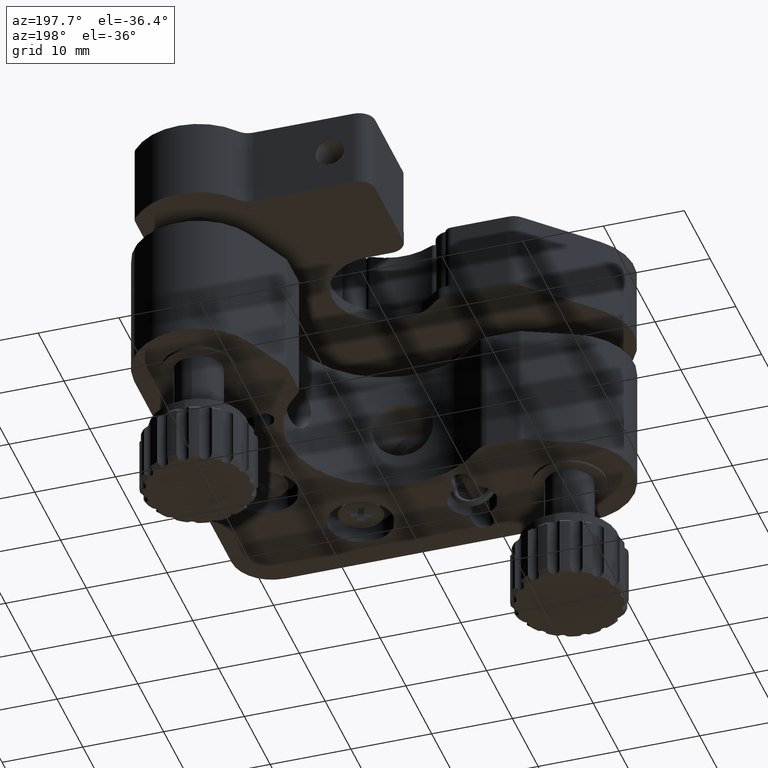
[diagram: clean part render]
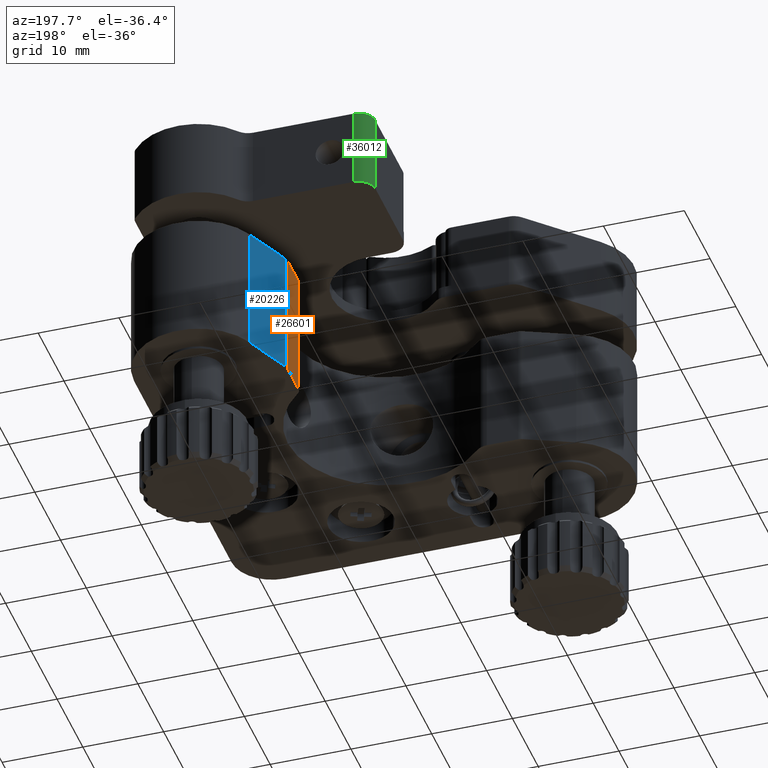
[diagram: same view with three faces highlighted in distinct colors, each labeled with its STEP entity id]
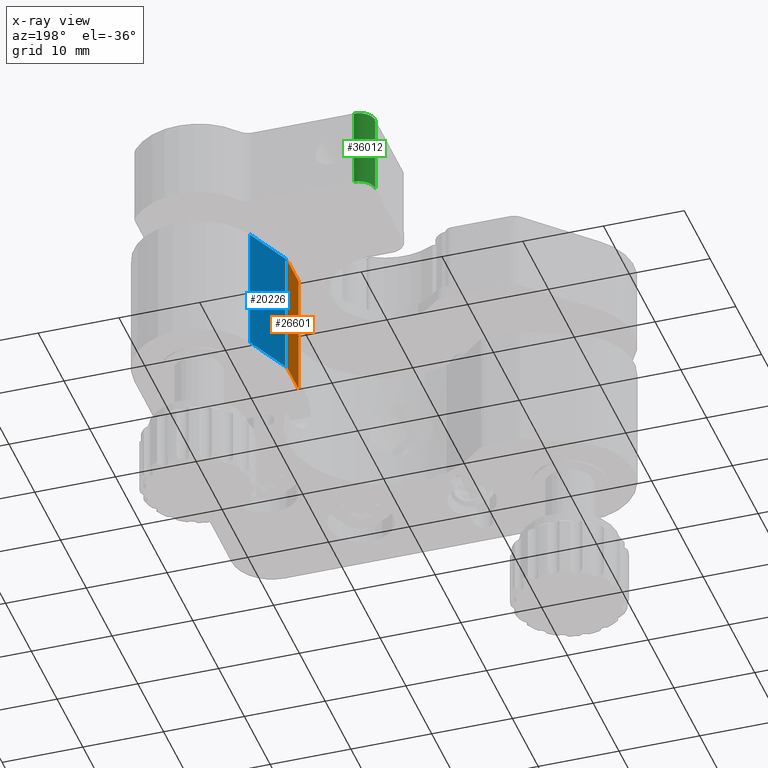
[diagram: x-ray of the same camera — body ghosted, the three highlighted faces saturated]
A machine part, auxiliary view with three faces highlighted in distinct colors.
The next image is the same camera in x-ray (body ghosted, the three faces saturated) — at least one of them is partly hidden behind the body in this view.
Their STEP definitions:

[orange] entity #26601 — the highlighted planar face has unit normal (-1, 0, 0).
#1118 = DIRECTION ( 'NONE',  ( 0.0000000000000000000, -1.000000000000000000, 0.0000000000000000000 ) ) ;
#3235 = EDGE_CURVE ( 'NONE', #16492, #3328, #9936, .T. ) ;
#3328 = VERTEX_POINT ( 'NONE', #12793 ) ;
#3478 = ORIENTED_EDGE ( 'NONE', *, *, #35811, .T. ) ;
#3801 = AXIS2_PLACEMENT_3D ( 'NONE', #16380, #35924, #19135 ) ;
#3909 = ORIENTED_EDGE ( 'NONE', *, *, #34433, .F. ) ;
#8943 = FACE_OUTER_BOUND ( 'NONE', #25793, .T. ) ;
#9275 = DIRECTION ( 'NONE',  ( 0.0000000000000000000, 0.0000000000000000000, -1.000000000000000000 ) ) ;
#9936 = LINE ( 'NONE', #29279, #16506 ) ;
#10883 = VECTOR ( 'NONE', #9275, 1000.000000000000000 ) ;
#10909 = EDGE_CURVE ( 'NONE', #17010, #31173, #32307, .T. ) ;
#11580 = CARTESIAN_POINT ( 'NONE',  ( -17.99999999999999600, 39.65939765117737900, 15.80000000000000100 ) ) ;
#12551 = DIRECTION ( 'NONE',  ( 0.0000000000000000000, 0.0000000000000000000, -1.000000000000000000 ) ) ;
#12793 = CARTESIAN_POINT ( 'NONE',  ( -17.99999999999999300, 39.65939765117737900, 0.0000000000000000000 ) ) ;
#12942 = CARTESIAN_POINT ( 'NONE',  ( -17.99999999999999600, 35.33615778645299300, 15.80000000000000100 ) ) ;
#15050 = CARTESIAN_POINT ( 'NONE',  ( -17.99999999999999300, 39.65939765117737900, 15.80000000000000100 ) ) ;
#16380 = CARTESIAN_POINT ( 'NONE',  ( -17.99999999999999600, 39.65939765117737900, 15.80000000000000100 ) ) ;
#16468 = VECTOR ( 'NONE', #1118, 1000.000000000000000 ) ;
#16492 = VERTEX_POINT ( 'NONE', #15050 ) ;
#16506 = VECTOR ( 'NONE', #12551, 1000.000000000000000 ) ;
#17010 = VERTEX_POINT ( 'NONE', #12942 ) ;
#17863 = CARTESIAN_POINT ( 'NONE',  ( -17.99999999999999600, 39.65939765117737900, 0.0000000000000000000 ) ) ;
#19135 = DIRECTION ( 'NONE',  ( 0.0000000000000000000, 0.0000000000000000000, -1.000000000000000000 ) ) ;
#20494 = CARTESIAN_POINT ( 'NONE',  ( -17.99999999999999600, 35.33615778645299300, 15.80000000000000100 ) ) ;
#20795 = ORIENTED_EDGE ( 'NONE', *, *, #10909, .F. ) ;
#20978 = VECTOR ( 'NONE', #31125, 1000.000000000000000 ) ;
#21842 = PLANE ( 'NONE',  #3801 ) ;
#25765 = CARTESIAN_POINT ( 'NONE',  ( -17.99999999999999600, 35.33615778645299300, 0.0000000000000000000 ) ) ;
#25793 = EDGE_LOOP ( 'NONE', ( #3478, #20795, #3909, #28952 ) ) ;
#26601 = ADVANCED_FACE ( 'NONE', ( #8943 ), #21842, .T. ) ;
#28402 = LINE ( 'NONE', #11580, #20978 ) ;
#28952 = ORIENTED_EDGE ( 'NONE', *, *, #3235, .T. ) ;
#29279 = CARTESIAN_POINT ( 'NONE',  ( -17.99999999999999300, 39.65939765117737900, 15.80000000000000100 ) ) ;
#31125 = DIRECTION ( 'NONE',  ( 0.0000000000000000000, -1.000000000000000000, 0.0000000000000000000 ) ) ;
#31173 = VERTEX_POINT ( 'NONE', #25765 ) ;
#31309 = LINE ( 'NONE', #17863, #16468 ) ;
#32307 = LINE ( 'NONE', #20494, #10883 ) ;
#34433 = EDGE_CURVE ( 'NONE', #16492, #17010, #28402, .T. ) ;
#35811 = EDGE_CURVE ( 'NONE', #3328, #31173, #31309, .T. ) ;
#35924 = DIRECTION ( 'NONE',  ( -1.000000000000000000, 0.0000000000000000000, 0.0000000000000000000 ) ) ;

[blue] entity #20226 — the highlighted planar face has unit normal (-0.917, 0.3989, 0).
#360 = VECTOR ( 'NONE', #26490, 1000.000000000000000 ) ;
#468 = CARTESIAN_POINT ( 'NONE',  ( -17.91698434503488000, 40.05832084047693800, 15.80000000000000100 ) ) ;
#1649 = FACE_OUTER_BOUND ( 'NONE', #28141, .T. ) ;
#1902 = VECTOR ( 'NONE', #36133, 1000.000000000000200 ) ;
#2767 = LINE ( 'NONE', #10932, #1902 ) ;
#3933 = EDGE_CURVE ( 'NONE', #29387, #6053, #23393, .T. ) ;
#5827 = VERTEX_POINT ( 'NONE', #14106 ) ;
#5926 = CARTESIAN_POINT ( 'NONE',  ( -17.91698434503488000, 40.05832084047693800, 15.80000000000000100 ) ) ;
#6053 = VERTEX_POINT ( 'NONE', #17872 ) ;
#10932 = CARTESIAN_POINT ( 'NONE',  ( -17.91698434503488000, 40.05832084047693800, 0.0000000000000000000 ) ) ;
#11083 = PLANE ( 'NONE',  #32744 ) ;
#11175 = ORIENTED_EDGE ( 'NONE', *, *, #19830, .T. ) ;
#11202 = DIRECTION ( 'NONE',  ( -0.9169843450348904600, 0.3989231892995606700, 0.0000000000000000000 ) ) ;
#14106 = CARTESIAN_POINT ( 'NONE',  ( -15.33587476027912400, 45.99138551439647000, 0.0000000000000000000 ) ) ;
#14520 = EDGE_CURVE ( 'NONE', #5827, #19323, #2767, .T. ) ;
#15091 = VECTOR ( 'NONE', #33744, 1000.000000000000200 ) ;
#15394 = CARTESIAN_POINT ( 'NONE',  ( -15.33587476027912400, 45.99138551439647000, 15.80000000000000100 ) ) ;
#15850 = LINE ( 'NONE', #468, #30699 ) ;
#17112 = CARTESIAN_POINT ( 'NONE',  ( -15.33587476027912400, 45.99138551439647000, 15.80000000000000100 ) ) ;
#17676 = ORIENTED_EDGE ( 'NONE', *, *, #14520, .T. ) ;
#17872 = CARTESIAN_POINT ( 'NONE',  ( -17.91698434503488000, 40.05832084047693800, 15.80000000000000100 ) ) ;
#19089 = CARTESIAN_POINT ( 'NONE',  ( -17.91698434503488000, 40.05832084047693800, 0.0000000000000000000 ) ) ;
#19323 = VERTEX_POINT ( 'NONE', #19089 ) ;
#19830 = EDGE_CURVE ( 'NONE', #29387, #5827, #32740, .T. ) ;
#19991 = DIRECTION ( 'NONE',  ( 0.0000000000000000000, 0.0000000000000000000, -1.000000000000000000 ) ) ;
#20226 = ADVANCED_FACE ( 'NONE', ( #1649 ), #11083, .T. ) ;
#23393 = LINE ( 'NONE', #5926, #15091 ) ;
#24361 = ORIENTED_EDGE ( 'NONE', *, *, #3933, .F. ) ;
#25445 = ORIENTED_EDGE ( 'NONE', *, *, #33729, .F. ) ;
#26490 = DIRECTION ( 'NONE',  ( 0.0000000000000000000, 0.0000000000000000000, -1.000000000000000000 ) ) ;
#27951 = CARTESIAN_POINT ( 'NONE',  ( -17.91698434503488000, 40.05832084047693800, 15.80000000000000100 ) ) ;
#28141 = EDGE_LOOP ( 'NONE', ( #17676, #25445, #24361, #11175 ) ) ;
#29387 = VERTEX_POINT ( 'NONE', #17112 ) ;
#30699 = VECTOR ( 'NONE', #19991, 1000.000000000000000 ) ;
#30759 = DIRECTION ( 'NONE',  ( -0.3989231892995606700, -0.9169843450348904600, -0.0000000000000000000 ) ) ;
#32740 = LINE ( 'NONE', #15394, #360 ) ;
#32744 = AXIS2_PLACEMENT_3D ( 'NONE', #27951, #11202, #30759 ) ;
#33729 = EDGE_CURVE ( 'NONE', #6053, #19323, #15850, .T. ) ;
#33744 = DIRECTION ( 'NONE',  ( -0.3989231892995606100, -0.9169843450348903500, 0.0000000000000000000 ) ) ;
#36133 = DIRECTION ( 'NONE',  ( -0.3989231892995606100, -0.9169843450348903500, 0.0000000000000000000 ) ) ;

[green] entity #36012 — the highlighted cylindrical surface (edge-blend (fillet) strip) has radius 2 mm, axis along (0, 0, 1).
#1129 = EDGE_CURVE ( 'NONE', #26878, #19263, #28710, .T. ) ;
#1202 = CARTESIAN_POINT ( 'NONE',  ( -28.50000000000000400, 46.79999999999999700, 20.00000000000000400 ) ) ;
#1803 = DIRECTION ( 'NONE',  ( 0.0000000000000000000, 0.0000000000000000000, 1.000000000000000000 ) ) ;
#2378 = ORIENTED_EDGE ( 'NONE', *, *, #1129, .T. ) ;
#2505 = CARTESIAN_POINT ( 'NONE',  ( -28.50000000000000400, 46.79999999999999700, 20.00000000000000400 ) ) ;
#4010 = DIRECTION ( 'NONE',  ( 0.0000000000000000000, 0.0000000000000000000, 1.000000000000000000 ) ) ;
#4417 = DIRECTION ( 'NONE',  ( 0.0000000000000000000, 0.0000000000000000000, 1.000000000000000000 ) ) ;
#8104 = VERTEX_POINT ( 'NONE', #2505 ) ;
#8710 = AXIS2_PLACEMENT_3D ( 'NONE', #18500, #1803, #21337 ) ;
#10312 = DIRECTION ( 'NONE',  ( 0.0000000000000000000, 0.0000000000000000000, 1.000000000000000000 ) ) ;
#10359 = DIRECTION ( 'NONE',  ( 0.0000000000000000000, 0.0000000000000000000, 1.000000000000000000 ) ) ;
#10891 = CIRCLE ( 'NONE', #26361, 2.000000000000001800 ) ;
#12247 = VECTOR ( 'NONE', #4010, 1000.000000000000000 ) ;
#12606 = EDGE_CURVE ( 'NONE', #18995, #19263, #10891, .T. ) ;
#14271 = EDGE_CURVE ( 'NONE', #8104, #26878, #20672, .T. ) ;
#17304 = ORIENTED_EDGE ( 'NONE', *, *, #12606, .F. ) ;
#18147 = CYLINDRICAL_SURFACE ( 'NONE', #18817, 2.000000000000001800 ) ;
#18500 = CARTESIAN_POINT ( 'NONE',  ( -28.50000000000000400, 44.79999999999999000, 20.00000000000000400 ) ) ;
#18817 = AXIS2_PLACEMENT_3D ( 'NONE', #24094, #4417, #35356 ) ;
#18995 = VERTEX_POINT ( 'NONE', #23404 ) ;
#19263 = VERTEX_POINT ( 'NONE', #27062 ) ;
#20268 = ORIENTED_EDGE ( 'NONE', *, *, #14271, .T. ) ;
#20672 = CIRCLE ( 'NONE', #8710, 2.000000000000001800 ) ;
#21337 = DIRECTION ( 'NONE',  ( -1.000000000000000000, 0.0000000000000000000, 0.0000000000000000000 ) ) ;
#21945 = ORIENTED_EDGE ( 'NONE', *, *, #34605, .F. ) ;
#23404 = CARTESIAN_POINT ( 'NONE',  ( -28.50000000000000400, 46.79999999999999700, 30.00000000000000400 ) ) ;
#24094 = CARTESIAN_POINT ( 'NONE',  ( -28.50000000000000400, 44.79999999999999000, 20.00000000000000400 ) ) ;
#26361 = AXIS2_PLACEMENT_3D ( 'NONE', #27042, #10312, #29846 ) ;
#26878 = VERTEX_POINT ( 'NONE', #29019 ) ;
#27042 = CARTESIAN_POINT ( 'NONE',  ( -28.50000000000000400, 44.79999999999999000, 30.00000000000000400 ) ) ;
#27062 = CARTESIAN_POINT ( 'NONE',  ( -30.50000000000000400, 44.79999999999999000, 30.00000000000000400 ) ) ;
#28710 = LINE ( 'NONE', #35421, #34422 ) ;
#29019 = CARTESIAN_POINT ( 'NONE',  ( -30.50000000000000400, 44.79999999999999000, 20.00000000000000400 ) ) ;
#29846 = DIRECTION ( 'NONE',  ( -1.000000000000000000, 0.0000000000000000000, 0.0000000000000000000 ) ) ;
#33643 = LINE ( 'NONE', #1202, #12247 ) ;
#34422 = VECTOR ( 'NONE', #10359, 1000.000000000000000 ) ;
#34605 = EDGE_CURVE ( 'NONE', #8104, #18995, #33643, .T. ) ;
#35356 = DIRECTION ( 'NONE',  ( 1.000000000000000000, 0.0000000000000000000, 0.0000000000000000000 ) ) ;
#35421 = CARTESIAN_POINT ( 'NONE',  ( -30.50000000000000400, 44.79999999999999000, 20.00000000000000400 ) ) ;
#35680 = FACE_OUTER_BOUND ( 'NONE', #35739, .T. ) ;
#35739 = EDGE_LOOP ( 'NONE', ( #17304, #21945, #20268, #2378 ) ) ;
#36012 = ADVANCED_FACE ( 'NONE', ( #35680 ), #18147, .T. ) ;